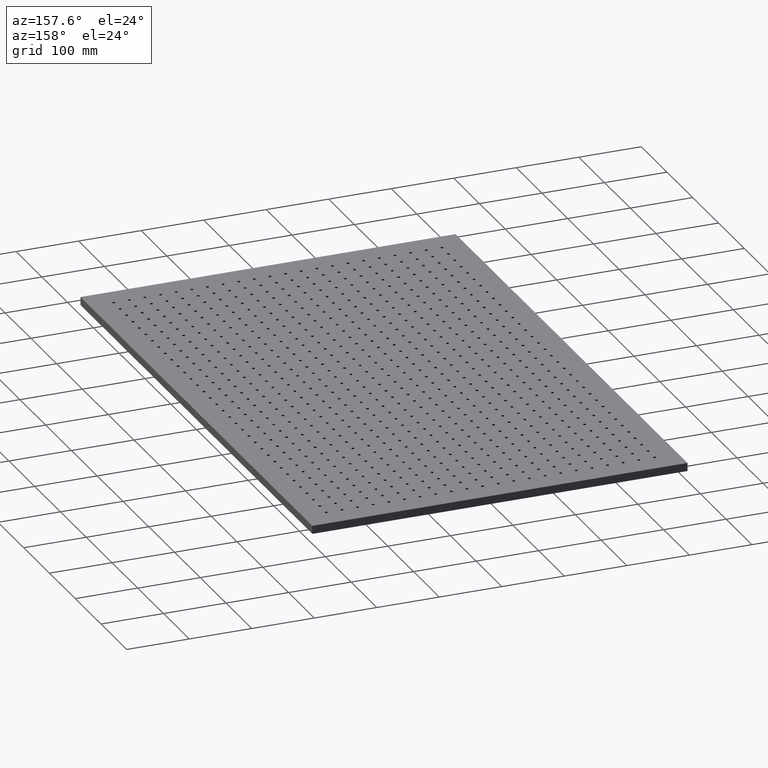
[diagram: clean part render]
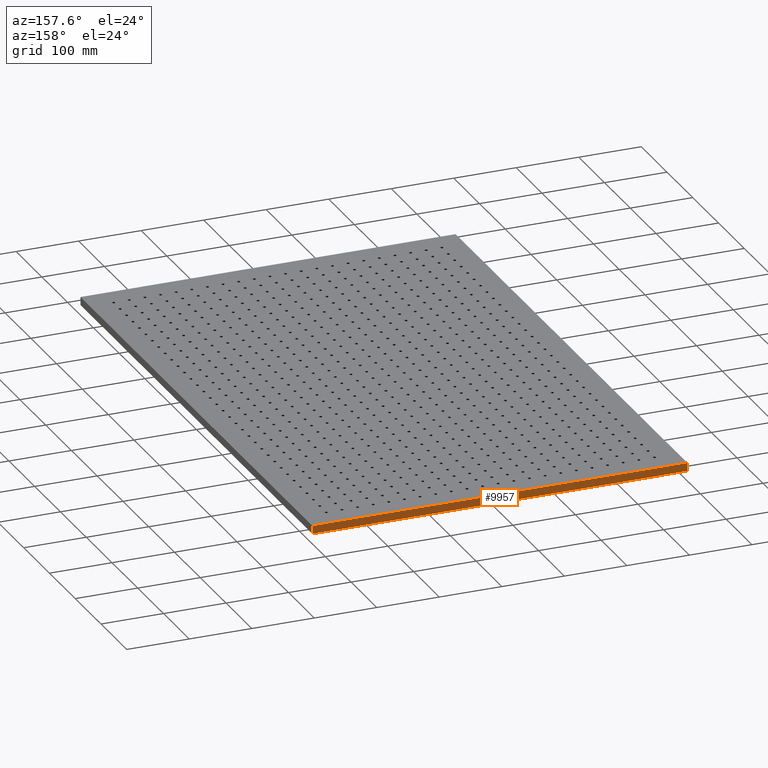
[diagram: same view with one face highlighted and labeled with its STEP entity id]
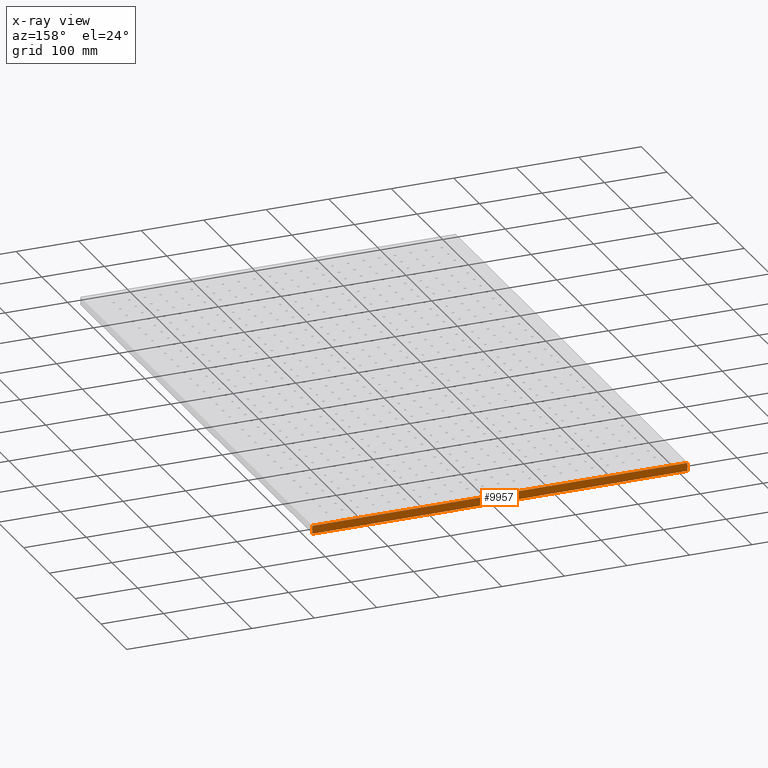
[diagram: x-ray of the same camera — body ghosted, the highlighted face saturated]
A machine part, auxiliary view. The second image highlights one B-rep face of the part: STEP entity #9957.
The next image is the same camera in x-ray: the body ghosted, the highlighted face saturated — about 0% of this face is hidden behind the body in this view.
In plain terms, the highlighted planar face has unit normal (0, -1, 0).
Its self-contained STEP definition (entity closure, byte-faithful):
#3255 = DIRECTION ( 'NONE',  ( -1.000000000000000000, -0.0000000000000000000, -0.0000000000000000000 ) ) ;
#3951 = CARTESIAN_POINT ( 'NONE',  ( 299.9999999999999400, 449.9999999999999400, 13.00000000000000000 ) ) ;
#4668 = VERTEX_POINT ( 'NONE', #23210 ) ;
#4993 = AXIS2_PLACEMENT_3D ( 'NONE', #35018, #18043, #47932 ) ;
#5043 = EDGE_CURVE ( 'NONE', #4668, #11147, #22794, .T. ) ;
#6040 = LINE ( 'NONE', #7119, #26081 ) ;
#6328 = CARTESIAN_POINT ( 'NONE',  ( -300.0000000000000600, 449.9999999999999400, 0.0000000000000000000 ) ) ;
#7119 = CARTESIAN_POINT ( 'NONE',  ( -300.0000000000000600, 449.9999999999999400, 13.00000000000000000 ) ) ;
#9957 = ADVANCED_FACE ( 'NONE', ( #47652 ), #17671, .F. ) ;
#10052 = VECTOR ( 'NONE', #3255, 1000.000000000000000 ) ;
#11147 = VERTEX_POINT ( 'NONE', #6328 ) ;
#11601 = EDGE_CURVE ( 'NONE', #23273, #4668, #54887, .T. ) ;
#12896 = DIRECTION ( 'NONE',  ( -1.000000000000000000, -0.0000000000000000000, -0.0000000000000000000 ) ) ;
#15407 = EDGE_LOOP ( 'NONE', ( #31202, #23577, #30929, #39512 ) ) ;
#17224 = CARTESIAN_POINT ( 'NONE',  ( -300.0000000000000600, 449.9999999999999400, 13.00000000000000000 ) ) ;
#17671 = PLANE ( 'NONE',  #4993 ) ;
#18043 = DIRECTION ( 'NONE',  ( 0.0000000000000000000, -1.000000000000000000, 0.0000000000000000000 ) ) ;
#22794 = LINE ( 'NONE', #37460, #10052 ) ;
#23210 = CARTESIAN_POINT ( 'NONE',  ( 299.9999999999999400, 449.9999999999999400, 0.0000000000000000000 ) ) ;
#23273 = VERTEX_POINT ( 'NONE', #25400 ) ;
#23577 = ORIENTED_EDGE ( 'NONE', *, *, #47781, .F. ) ;
#25400 = CARTESIAN_POINT ( 'NONE',  ( 299.9999999999999400, 449.9999999999999400, 13.00000000000000000 ) ) ;
#26081 = VECTOR ( 'NONE', #32726, 1000.000000000000000 ) ;
#30929 = ORIENTED_EDGE ( 'NONE', *, *, #46457, .F. ) ;
#31202 = ORIENTED_EDGE ( 'NONE', *, *, #5043, .T. ) ;
#32726 = DIRECTION ( 'NONE',  ( -0.0000000000000000000, -0.0000000000000000000, -1.000000000000000000 ) ) ;
#35018 = CARTESIAN_POINT ( 'NONE',  ( -300.0000000000000600, 449.9999999999999400, 13.00000000000000000 ) ) ;
#37460 = CARTESIAN_POINT ( 'NONE',  ( -300.0000000000000600, 449.9999999999999400, 0.0000000000000000000 ) ) ;
#38278 = VECTOR ( 'NONE', #12896, 1000.000000000000000 ) ;
#38419 = CARTESIAN_POINT ( 'NONE',  ( -300.0000000000000600, 449.9999999999999400, 13.00000000000000000 ) ) ;
#39512 = ORIENTED_EDGE ( 'NONE', *, *, #11601, .T. ) ;
#43467 = VECTOR ( 'NONE', #51062, 1000.000000000000000 ) ;
#46457 = EDGE_CURVE ( 'NONE', #23273, #52445, #50997, .T. ) ;
#47652 = FACE_OUTER_BOUND ( 'NONE', #15407, .T. ) ;
#47781 = EDGE_CURVE ( 'NONE', #52445, #11147, #6040, .T. ) ;
#47932 = DIRECTION ( 'NONE',  ( 0.0000000000000000000, -0.0000000000000000000, -1.000000000000000000 ) ) ;
#50997 = LINE ( 'NONE', #17224, #38278 ) ;
#51062 = DIRECTION ( 'NONE',  ( -0.0000000000000000000, -0.0000000000000000000, -1.000000000000000000 ) ) ;
#52445 = VERTEX_POINT ( 'NONE', #38419 ) ;
#54887 = LINE ( 'NONE', #3951, #43467 ) ;